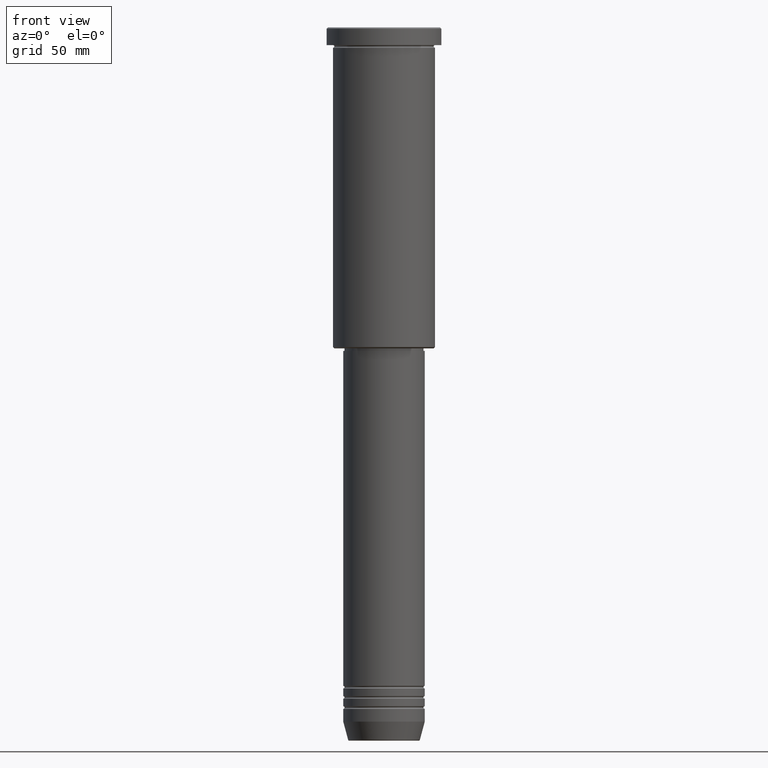
[diagram: clean part render]
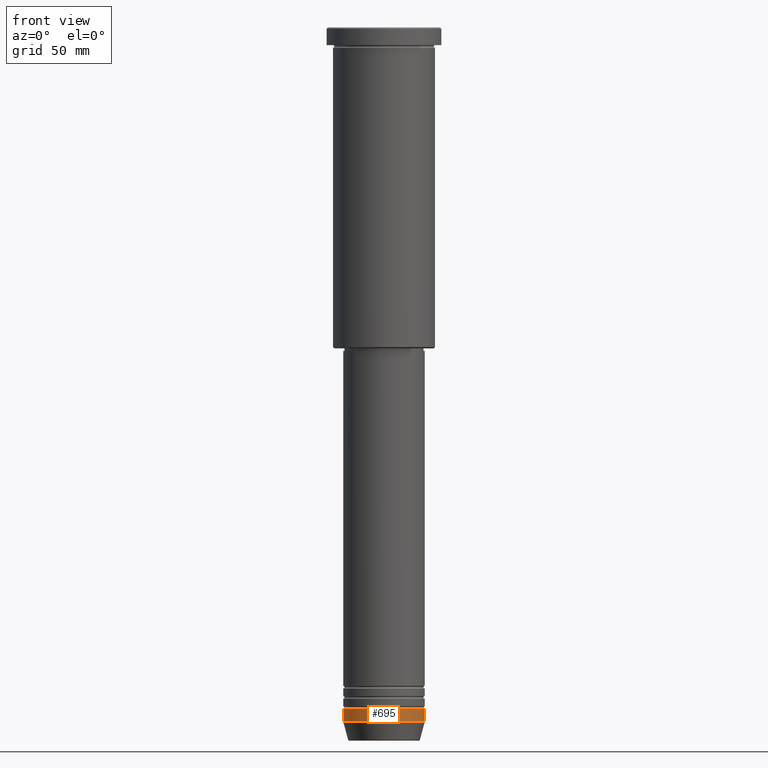
[diagram: same view with one face highlighted and labeled with its STEP entity id]
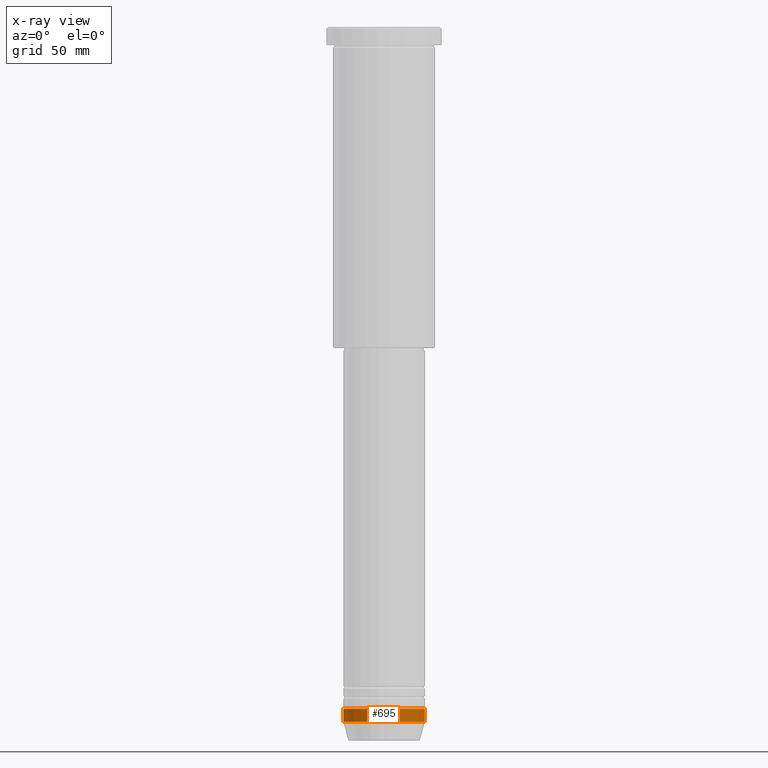
[diagram: x-ray of the same camera — body ghosted, the highlighted face saturated]
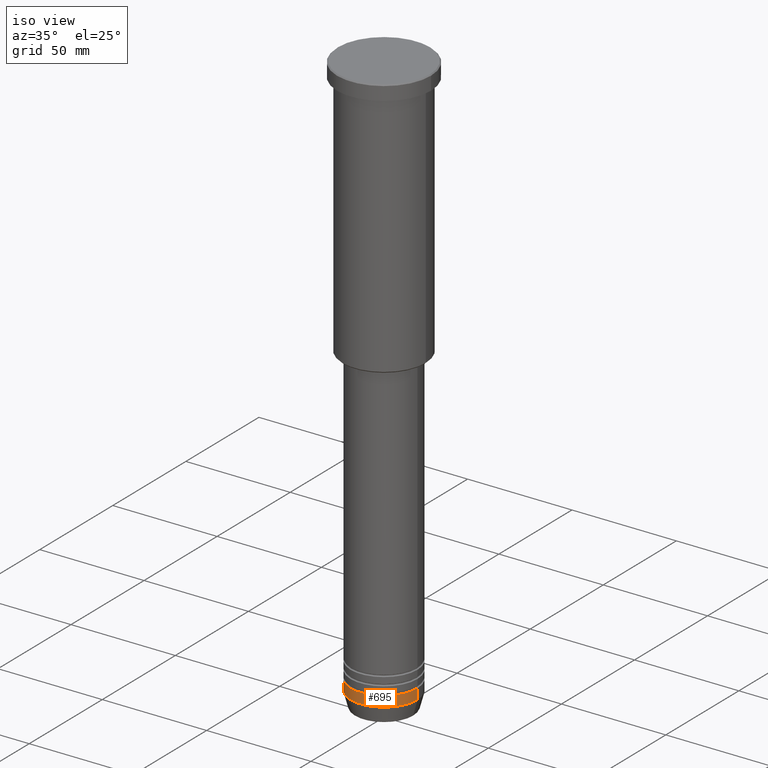
[diagram: same view with one face highlighted and labeled with its STEP entity id]
A machine part, front view. The second image highlights one B-rep face of the part: STEP entity #695.
The next image is the same camera in x-ray: the body ghosted, the highlighted face saturated — about 0% of this face is hidden behind the body in this view.
A second angle (iso view) of the same face is appended — the face is thin or edge-on in the first view.
In plain terms, the highlighted cylindrical surface (partial cylindrical patch) has radius 16 mm, axis along (-0, -0, 1).
Its self-contained STEP definition (entity closure, byte-faithful):
#35 = CARTESIAN_POINT ( 'NONE',  ( 0.000000000000000000, 0.000000000000000000, -267.5000000000000000 ) ) ;
#42 = AXIS2_PLACEMENT_3D ( 'NONE', #35, #481, #404 ) ;
#44 = AXIS2_PLACEMENT_3D ( 'NONE', #116, #775, #135 ) ;
#45 = ORIENTED_EDGE ( 'NONE', *, *, #845, .T. ) ;
#47 = CARTESIAN_POINT ( 'NONE',  ( 16.00000000000000000, 0.000000000000000000, -272.5000000000000000 ) ) ;
#49 = ORIENTED_EDGE ( 'NONE', *, *, #583, .T. ) ;
#77 = VERTEX_POINT ( 'NONE', #1050 ) ;
#83 = ORIENTED_EDGE ( 'NONE', *, *, #117, .F. ) ;
#84 = DIRECTION ( 'NONE',  ( -0.000000000000000000, -0.000000000000000000, 1.000000000000000000 ) ) ;
#91 = CIRCLE ( 'NONE', #760, 16.00000000000000000 ) ;
#116 = CARTESIAN_POINT ( 'NONE',  ( 0.000000000000000000, 0.000000000000000000, 0.000000000000000000 ) ) ;
#117 = EDGE_CURVE ( 'NONE', #77, #584, #985, .T. ) ;
#135 = DIRECTION ( 'NONE',  ( 1.000000000000000000, 0.000000000000000000, 0.000000000000000000 ) ) ;
#169 = EDGE_CURVE ( 'NONE', #1118, #77, #459, .T. ) ;
#194 = ORIENTED_EDGE ( 'NONE', *, *, #169, .F. ) ;
#202 = CYLINDRICAL_SURFACE ( 'NONE', #44, 16.00000000000000000 ) ;
#352 = LINE ( 'NONE', #431, #705 ) ;
#395 = CARTESIAN_POINT ( 'NONE',  ( -16.00000000000000000, 1.959434878635765131E-15, -272.5000000000000000 ) ) ;
#404 = DIRECTION ( 'NONE',  ( 1.000000000000000000, 0.000000000000000000, 0.000000000000000000 ) ) ;
#429 = DIRECTION ( 'NONE',  ( 1.000000000000000000, 0.000000000000000000, 0.000000000000000000 ) ) ;
#431 = CARTESIAN_POINT ( 'NONE',  ( 16.00000000000000000, 0.000000000000000000, 0.000000000000000000 ) ) ;
#459 = LINE ( 'NONE', #993, #586 ) ;
#481 = DIRECTION ( 'NONE',  ( -0.000000000000000000, -0.000000000000000000, 1.000000000000000000 ) ) ;
#560 = EDGE_LOOP ( 'NONE', ( #194, #45, #49, #83 ) ) ;
#567 = FACE_OUTER_BOUND ( 'NONE', #560, .T. ) ;
#583 = EDGE_CURVE ( 'NONE', #1107, #584, #352, .T. ) ;
#584 = VERTEX_POINT ( 'NONE', #908 ) ;
#586 = VECTOR ( 'NONE', #716, 1000.000000000000000 ) ;
#615 = CARTESIAN_POINT ( 'NONE',  ( 0.000000000000000000, 0.000000000000000000, -272.5000000000000000 ) ) ;
#695 = ADVANCED_FACE ( 'NONE', ( #567 ), #202, .T. ) ;
#705 = VECTOR ( 'NONE', #804, 1000.000000000000000 ) ;
#716 = DIRECTION ( 'NONE',  ( -0.000000000000000000, -0.000000000000000000, 1.000000000000000000 ) ) ;
#760 = AXIS2_PLACEMENT_3D ( 'NONE', #615, #84, #429 ) ;
#775 = DIRECTION ( 'NONE',  ( -0.000000000000000000, -0.000000000000000000, 1.000000000000000000 ) ) ;
#804 = DIRECTION ( 'NONE',  ( -0.000000000000000000, -0.000000000000000000, 1.000000000000000000 ) ) ;
#845 = EDGE_CURVE ( 'NONE', #1118, #1107, #91, .T. ) ;
#908 = CARTESIAN_POINT ( 'NONE',  ( 16.00000000000000000, 0.000000000000000000, -267.5000000000000000 ) ) ;
#985 = CIRCLE ( 'NONE', #42, 16.00000000000000000 ) ;
#993 = CARTESIAN_POINT ( 'NONE',  ( -16.00000000000000000, 1.959434878635765131E-15, 0.000000000000000000 ) ) ;
#1050 = CARTESIAN_POINT ( 'NONE',  ( -16.00000000000000000, 1.959434878635765131E-15, -267.5000000000000000 ) ) ;
#1107 = VERTEX_POINT ( 'NONE', #47 ) ;
#1118 = VERTEX_POINT ( 'NONE', #395 ) ;